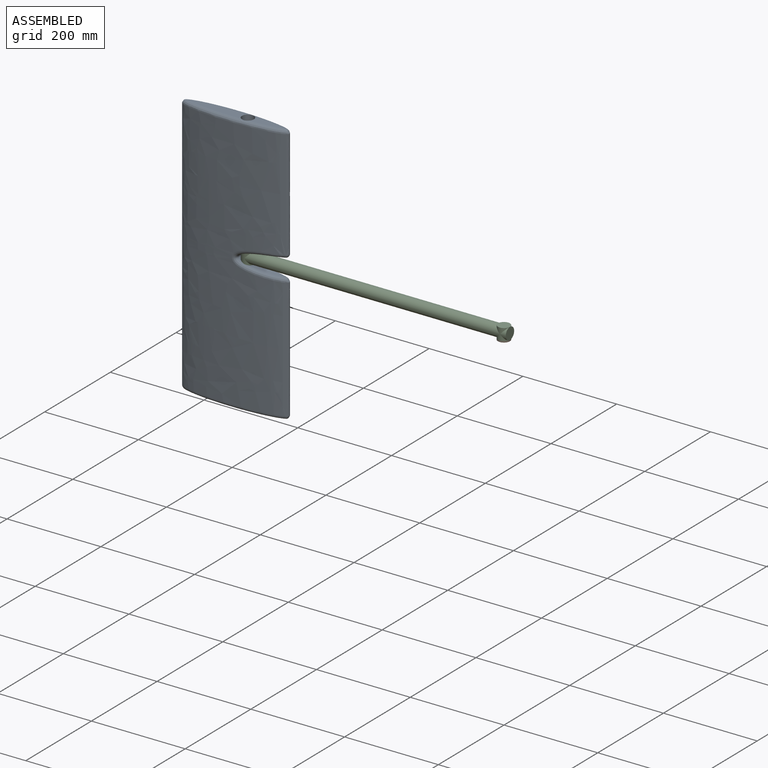
[diagram: assembled view]
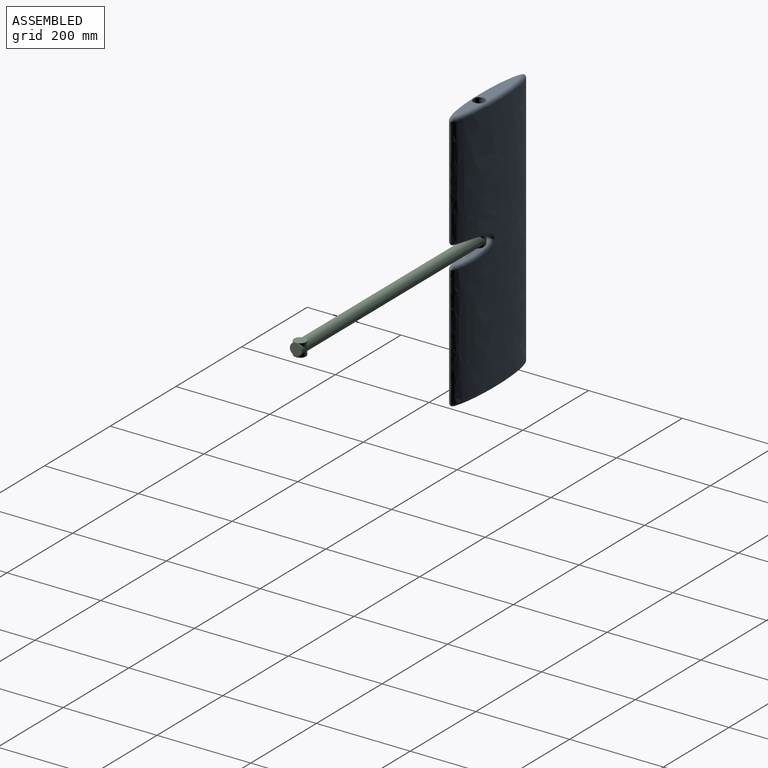
[diagram: assembled view, second angle]
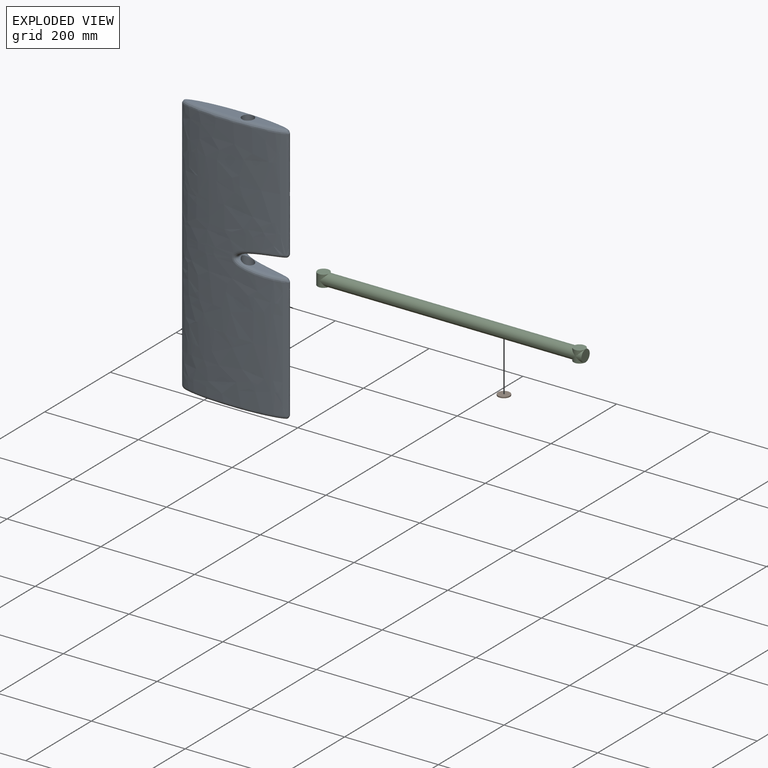
[diagram: exploded view]
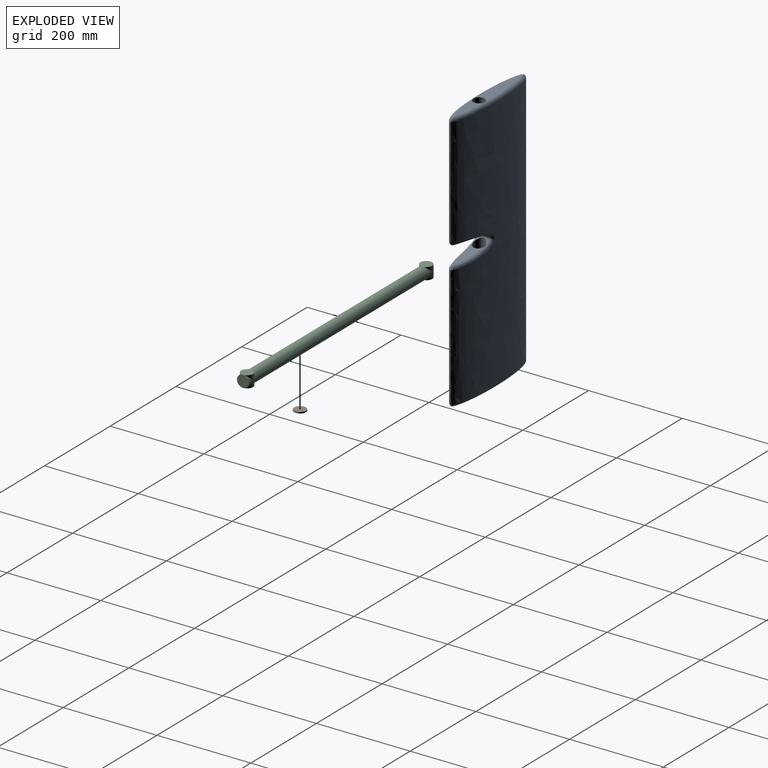
[diagram: exploded view, second angle]
ASSEMBLY  parts=3 mates=2
PART A: 22 faces, bbox 228.6x38.1x558.8 mm
  f0: plane 122.63x22.87mm, normal (0,0,1), area 2043.3mm2, adj f4,f19,f20
  f1: plane 122.63x22.87mm, normal (0,0,-1), area 2043.3mm2, adj f5,f15,f16
  f2: extruded ~22.83x14.32mm, area 230.7mm2, adj f4,f5,f11,f12
  f3: extruded ~71.26x21.48mm, area 620.9mm2, adj f5,f11,f12
  f4: cylinder r=12.7mm len=265.13mm, axis (0,0,-1), area 20638.7mm2, adj f0,f2,f7,f9,f11,f12,f19,f20
  f5: cylinder r=12.7mm len=289.29mm, axis (0,0,-1), area 22566.5mm2, adj f1,f2,f3,f8,f11,f12,f15,f16
  f6: extruded ~543.56x228.17mm, area 247406.7mm2, adj f10,f11,f12,f13,f14,f15,f16,f17
  f7: plane 70.97x21.29mm, normal (0,0,1), area 901.5mm2, adj f4,f19,f20
  f8: plane 70.97x21.29mm, normal (0,0,-1), area 901.5mm2, adj f5,f15,f16
  f9: extruded ~71.26x21.48mm, area 621mm2, adj f4,f11,f12
  f10: bspline ~10.86x9.89mm, area 109.2mm2, adj f6,f11,f12
  f11: bspline ~106.56x53.25mm, area 2507.8mm2, adj f2,f3,f4,f5,f6,f9,f10,f13
  f12: bspline ~106.64x53.25mm, area 2507.8mm2, adj f2,f3,f4,f5,f6,f9,f10,f13
  f13: bspline ~10.86x9.72mm, area 105.5mm2, adj f6,f11,f12
  f14: bspline ~11.01x9.73mm, area 106.4mm2, adj f6,f15,f16
  f15: bspline ~221.65x20.79mm, area 2596.3mm2, adj f1,f5,f6,f8,f14,f17
  f16: bspline ~221x20.62mm, area 2596.3mm2, adj f1,f5,f6,f8,f14,f17
  f17: bspline ~11.01x9.75mm, area 107.1mm2, adj f6,f15,f16
  f18: bspline ~11.01x9.74mm, area 77mm2, adj f6,f19,f20
  f19: bspline ~222.08x20.85mm, area 2596.6mm2, adj f0,f4,f6,f7,f18,f21
  f20: bspline ~221x20.63mm, area 2596.3mm2, adj f0,f4,f6,f7,f18,f21
  f21: bspline ~11.01x9.72mm, area 76.9mm2, adj f6,f19,f20
PART B: 3 faces, bbox 25.4x25.4x2.5 mm
  f0: cylinder r=12.7mm len=25.4mm, axis (0,0,-1), area 202.7mm2, adj f1,f2
  f1: plane 25.4x25.4mm, normal (0,0,1), area 506.7mm2, adj f0
  f2: plane 25.4x25.4mm, normal (0,0,-1), area 506.7mm2, adj f0
PART C: 12 faces, bbox 571.5x25.5x25.4 mm
  f0: cylinder r=12.7mm len=558.8mm, axis (-1,0,0), area 42681mm2, adj f1,f2,f3,f5,f6,f8,f9,f10
  f1: cylinder r=12.7mm len=25.4mm, axis (0,0,-1), area 1292.2mm2, adj f0,f2,f3,f4,f5
  f2: cylinder r=12.7mm len=12.69mm, axis (0,0,-1), area 111.4mm2, adj f0,f1,f3
  f3: plane 25.41x25.41mm, normal (0,0,1), area 497.8mm2, adj f0,f1,f2
  f4: plane 25.4x25.4mm, normal (0,0,-1), area 506.7mm2, adj f1
  f5: plane 2.57x0.07mm, normal (-1,0,0), area 0.1mm2, adj f0,f1
  f6: plane 25.4x25.4mm, normal (1,0,0), area 506.7mm2, adj f0
  f7: plane 25.4x25.4mm, normal (0,0,-1), area 506.7mm2, adj f9
  f8: plane 25.39x12.37mm, normal (0,0,1), area 245mm2, adj f0,f9
  f9: cylinder r=12.7mm len=25.4mm, axis (0,0,-1), area 569.3mm2, adj f0,f7,f8
  f10: cylinder r=12.7mm len=25.39mm, axis (0,0,-1), area 183.2mm2, adj f0,f11
  f11: plane 25.39x12.33mm, normal (0,0,1), area 243.9mm2, adj f0,f10
PLACE A t=(-142.99,44.94,-324.72)mm
PLACE B t=(116.84,71.8,-47.86)mm fixed
PLACE C t=(-117.59,-30.97,-45.32)mm
MATE revolute C.f9 <-> B.f0  axis (0,0,-1) through (428.36,44.98,-45.32)mm
MATE revolute A.f4 <-> C.f1  axis (0,0,-1) through (-117.59,44.94,234.08)mm
